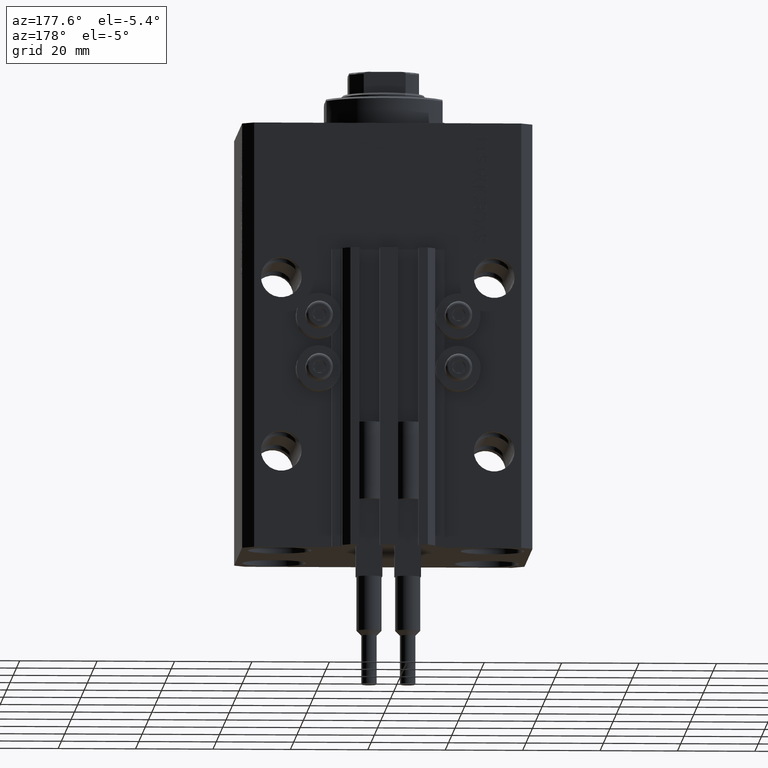
[diagram: clean part render]
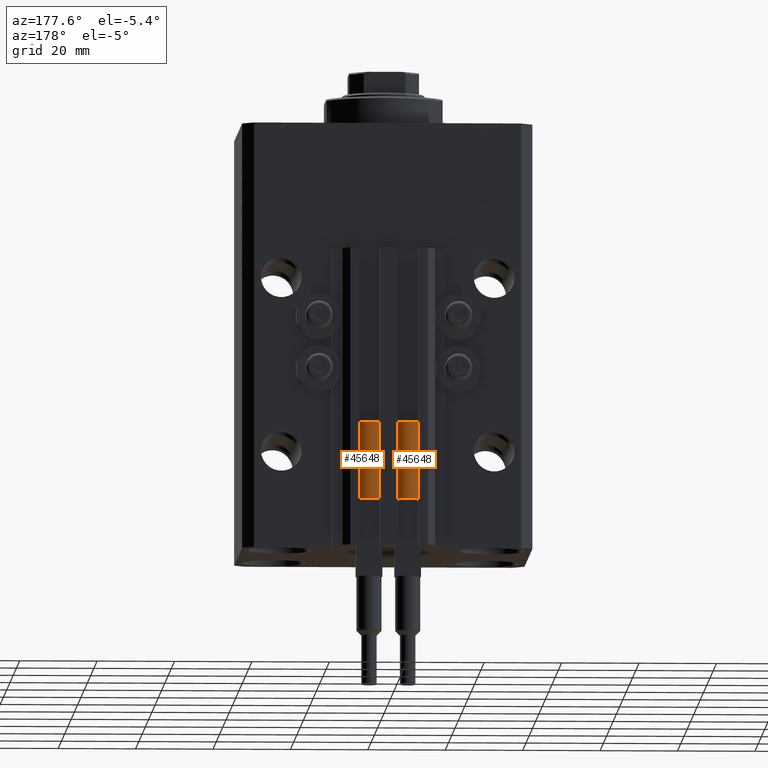
[diagram: same view with one multi-face feature highlighted, each face labeled with its STEP entity id]
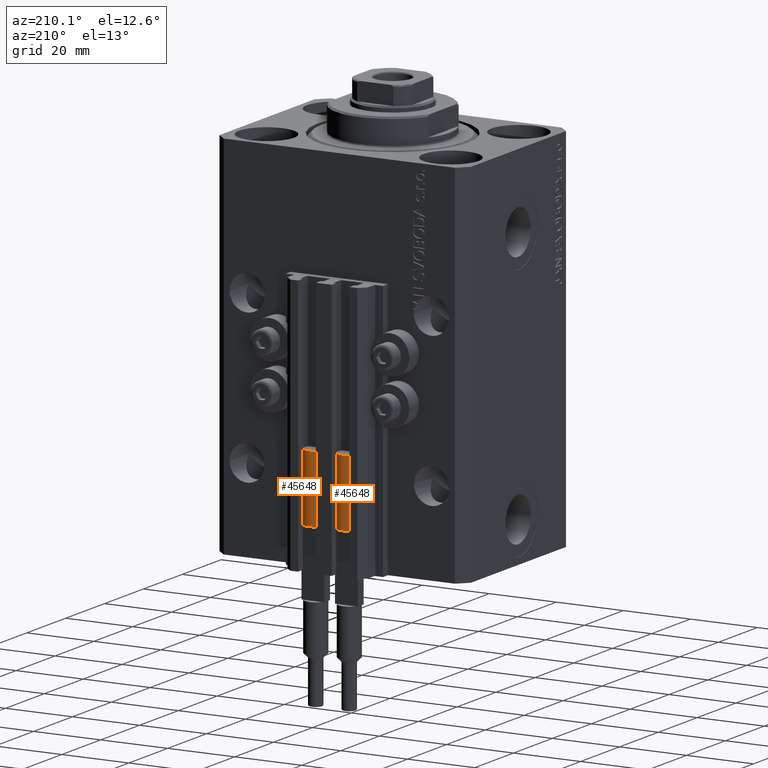
[diagram: same view with one multi-face feature highlighted, each face labeled with its STEP entity id]
A machine part, auxiliary view. The highlighted faces form ONE feature: a constant-radius fillet chain: 2 tangent blend faces with common blend radius 3.4 mm. The faces share edges in the B-rep.
A second angle (auxiliary view) of the same feature is appended — it is thin or edge-on in the first view.
Their STEP definitions:
[1] entity #45648 (Cylinder):
#1019 = DIRECTION ( 'NONE',  ( 1.000000000000000000, 0.000000000000000000, 0.000000000000000000 ) ) ;
#1122 = CARTESIAN_POINT ( 'NONE',  ( 0.000000000000000000, 0.000000000000000000, 20.00000000000000000 ) ) ;
#1920 = CARTESIAN_POINT ( 'NONE',  ( -3.400000000000000355, 0.000000000000000000, 20.00000000000000000 ) ) ;
#3035 = EDGE_LOOP ( 'NONE', ( #30367, #11745, #15909, #42929, #47976, #8501 ) ) ;
#3403 = CARTESIAN_POINT ( 'NONE',  ( 0.000000000000000000, 0.000000000000000000, 20.00000000000000000 ) ) ;
#3668 = CARTESIAN_POINT ( 'NONE',  ( 3.400000000000000355, 4.163799117101001052E-16, 0.000000000000000000 ) ) ;
#4440 = EDGE_CURVE ( 'NONE', #30192, #44255, #16531, .T. ) ;
#5877 = EDGE_CURVE ( 'NONE', #8791, #23794, #20468, .T. ) ;
#6184 = DIRECTION ( 'NONE',  ( 0.000000000000000000, 0.000000000000000000, 1.000000000000000000 ) ) ;
#6739 = VECTOR ( 'NONE', #9485, 1000.000000000000000 ) ;
#8167 = CARTESIAN_POINT ( 'NONE',  ( 3.051229260478471428, 1.500000000000000000, 20.00000000000000000 ) ) ;
#8501 = ORIENTED_EDGE ( 'NONE', *, *, #4440, .F. ) ;
#8791 = VERTEX_POINT ( 'NONE', #3668 ) ;
#9336 = DIRECTION ( 'NONE',  ( -0.000000000000000000, -0.000000000000000000, -1.000000000000000000 ) ) ;
#9485 = DIRECTION ( 'NONE',  ( -0.000000000000000000, -0.000000000000000000, -1.000000000000000000 ) ) ;
#11087 = AXIS2_PLACEMENT_3D ( 'NONE', #1122, #26475, #41814 ) ;
#11745 = ORIENTED_EDGE ( 'NONE', *, *, #39323, .T. ) ;
#12723 = CARTESIAN_POINT ( 'NONE',  ( 3.400000000000000355, 0.000000000000000000, 20.00000000000000000 ) ) ;
#13624 = DIRECTION ( 'NONE',  ( 1.000000000000000000, 0.000000000000000000, 0.000000000000000000 ) ) ;
#13875 = CYLINDRICAL_SURFACE ( 'NONE', #26555, 3.400000000000000355 ) ;
#15909 = ORIENTED_EDGE ( 'NONE', *, *, #5877, .T. ) ;
#16531 = CIRCLE ( 'NONE', #11087, 3.400000000000000355 ) ;
#20468 = CIRCLE ( 'NONE', #31380, 3.400000000000000355 ) ;
#23794 = VERTEX_POINT ( 'NONE', #37507 ) ;
#26475 = DIRECTION ( 'NONE',  ( 0.000000000000000000, 0.000000000000000000, 1.000000000000000000 ) ) ;
#26555 = AXIS2_PLACEMENT_3D ( 'NONE', #3403, #28747, #36782 ) ;
#26955 = EDGE_CURVE ( 'NONE', #44255, #27212, #38876, .T. ) ;
#27212 = VERTEX_POINT ( 'NONE', #42333 ) ;
#27338 = CARTESIAN_POINT ( 'NONE',  ( 0.000000000000000000, 0.000000000000000000, 0.000000000000000000 ) ) ;
#28240 = LINE ( 'NONE', #1920, #6739 ) ;
#28747 = DIRECTION ( 'NONE',  ( -0.000000000000000000, -0.000000000000000000, -1.000000000000000000 ) ) ;
#29321 = DIRECTION ( 'NONE',  ( 1.000000000000000000, 0.000000000000000000, 0.000000000000000000 ) ) ;
#29569 = VERTEX_POINT ( 'NONE', #12723 ) ;
#30192 = VERTEX_POINT ( 'NONE', #8167 ) ;
#30367 = ORIENTED_EDGE ( 'NONE', *, *, #35306, .F. ) ;
#31380 = AXIS2_PLACEMENT_3D ( 'NONE', #27338, #34400, #1019 ) ;
#31747 = LINE ( 'NONE', #39053, #32548 ) ;
#31812 = EDGE_CURVE ( 'NONE', #27212, #23794, #28240, .T. ) ;
#32156 = CARTESIAN_POINT ( 'NONE',  ( 0.000000000000000000, 0.000000000000000000, 20.00000000000000000 ) ) ;
#32548 = VECTOR ( 'NONE', #9336, 1000.000000000000000 ) ;
#33321 = CIRCLE ( 'NONE', #42657, 3.400000000000000355 ) ;
#34400 = DIRECTION ( 'NONE',  ( 0.000000000000000000, 0.000000000000000000, 1.000000000000000000 ) ) ;
#34969 = CARTESIAN_POINT ( 'NONE',  ( -3.051229260478471428, 1.500000000000000000, 20.00000000000000000 ) ) ;
#35306 = EDGE_CURVE ( 'NONE', #29569, #30192, #33321, .T. ) ;
#36782 = DIRECTION ( 'NONE',  ( -1.000000000000000000, 0.000000000000000000, 0.000000000000000000 ) ) ;
#37507 = CARTESIAN_POINT ( 'NONE',  ( -3.400000000000000355, 0.000000000000000000, 0.000000000000000000 ) ) ;
#38876 = CIRCLE ( 'NONE', #40443, 3.400000000000000355 ) ;
#39053 = CARTESIAN_POINT ( 'NONE',  ( 3.400000000000000355, 4.163799117101001052E-16, 20.00000000000000000 ) ) ;
#39323 = EDGE_CURVE ( 'NONE', #29569, #8791, #31747, .T. ) ;
#40443 = AXIS2_PLACEMENT_3D ( 'NONE', #32156, #46985, #13624 ) ;
#41814 = DIRECTION ( 'NONE',  ( 1.000000000000000000, 0.000000000000000000, 0.000000000000000000 ) ) ;
#42333 = CARTESIAN_POINT ( 'NONE',  ( -3.399999999999999467, -4.915049848600952119E-16, 20.00000000000000000 ) ) ;
#42657 = AXIS2_PLACEMENT_3D ( 'NONE', #43207, #6184, #29321 ) ;
#42929 = ORIENTED_EDGE ( 'NONE', *, *, #31812, .F. ) ;
#43207 = CARTESIAN_POINT ( 'NONE',  ( 0.000000000000000000, 0.000000000000000000, 20.00000000000000000 ) ) ;
#43832 = FACE_OUTER_BOUND ( 'NONE', #3035, .T. ) ;
#44255 = VERTEX_POINT ( 'NONE', #34969 ) ;
#45648 = ADVANCED_FACE ( 'NONE', ( #43832 ), #13875, .T. ) ;
#46985 = DIRECTION ( 'NONE',  ( 0.000000000000000000, 0.000000000000000000, 1.000000000000000000 ) ) ;
#47976 = ORIENTED_EDGE ( 'NONE', *, *, #26955, .F. ) ;
[2] entity #45648 (Cylinder):
#1019 = DIRECTION ( 'NONE',  ( 1.000000000000000000, 0.000000000000000000, 0.000000000000000000 ) ) ;
#1122 = CARTESIAN_POINT ( 'NONE',  ( 0.000000000000000000, 0.000000000000000000, 20.00000000000000000 ) ) ;
#1920 = CARTESIAN_POINT ( 'NONE',  ( -3.400000000000000355, 0.000000000000000000, 20.00000000000000000 ) ) ;
#3035 = EDGE_LOOP ( 'NONE', ( #30367, #11745, #15909, #42929, #47976, #8501 ) ) ;
#3403 = CARTESIAN_POINT ( 'NONE',  ( 0.000000000000000000, 0.000000000000000000, 20.00000000000000000 ) ) ;
#3668 = CARTESIAN_POINT ( 'NONE',  ( 3.400000000000000355, 4.163799117101001052E-16, 0.000000000000000000 ) ) ;
#4440 = EDGE_CURVE ( 'NONE', #30192, #44255, #16531, .T. ) ;
#5877 = EDGE_CURVE ( 'NONE', #8791, #23794, #20468, .T. ) ;
#6184 = DIRECTION ( 'NONE',  ( 0.000000000000000000, 0.000000000000000000, 1.000000000000000000 ) ) ;
#6739 = VECTOR ( 'NONE', #9485, 1000.000000000000000 ) ;
#8167 = CARTESIAN_POINT ( 'NONE',  ( 3.051229260478471428, 1.500000000000000000, 20.00000000000000000 ) ) ;
#8501 = ORIENTED_EDGE ( 'NONE', *, *, #4440, .F. ) ;
#8791 = VERTEX_POINT ( 'NONE', #3668 ) ;
#9336 = DIRECTION ( 'NONE',  ( -0.000000000000000000, -0.000000000000000000, -1.000000000000000000 ) ) ;
#9485 = DIRECTION ( 'NONE',  ( -0.000000000000000000, -0.000000000000000000, -1.000000000000000000 ) ) ;
#11087 = AXIS2_PLACEMENT_3D ( 'NONE', #1122, #26475, #41814 ) ;
#11745 = ORIENTED_EDGE ( 'NONE', *, *, #39323, .T. ) ;
#12723 = CARTESIAN_POINT ( 'NONE',  ( 3.400000000000000355, 0.000000000000000000, 20.00000000000000000 ) ) ;
#13624 = DIRECTION ( 'NONE',  ( 1.000000000000000000, 0.000000000000000000, 0.000000000000000000 ) ) ;
#13875 = CYLINDRICAL_SURFACE ( 'NONE', #26555, 3.400000000000000355 ) ;
#15909 = ORIENTED_EDGE ( 'NONE', *, *, #5877, .T. ) ;
#16531 = CIRCLE ( 'NONE', #11087, 3.400000000000000355 ) ;
#20468 = CIRCLE ( 'NONE', #31380, 3.400000000000000355 ) ;
#23794 = VERTEX_POINT ( 'NONE', #37507 ) ;
#26475 = DIRECTION ( 'NONE',  ( 0.000000000000000000, 0.000000000000000000, 1.000000000000000000 ) ) ;
#26555 = AXIS2_PLACEMENT_3D ( 'NONE', #3403, #28747, #36782 ) ;
#26955 = EDGE_CURVE ( 'NONE', #44255, #27212, #38876, .T. ) ;
#27212 = VERTEX_POINT ( 'NONE', #42333 ) ;
#27338 = CARTESIAN_POINT ( 'NONE',  ( 0.000000000000000000, 0.000000000000000000, 0.000000000000000000 ) ) ;
#28240 = LINE ( 'NONE', #1920, #6739 ) ;
#28747 = DIRECTION ( 'NONE',  ( -0.000000000000000000, -0.000000000000000000, -1.000000000000000000 ) ) ;
#29321 = DIRECTION ( 'NONE',  ( 1.000000000000000000, 0.000000000000000000, 0.000000000000000000 ) ) ;
#29569 = VERTEX_POINT ( 'NONE', #12723 ) ;
#30192 = VERTEX_POINT ( 'NONE', #8167 ) ;
#30367 = ORIENTED_EDGE ( 'NONE', *, *, #35306, .F. ) ;
#31380 = AXIS2_PLACEMENT_3D ( 'NONE', #27338, #34400, #1019 ) ;
#31747 = LINE ( 'NONE', #39053, #32548 ) ;
#31812 = EDGE_CURVE ( 'NONE', #27212, #23794, #28240, .T. ) ;
#32156 = CARTESIAN_POINT ( 'NONE',  ( 0.000000000000000000, 0.000000000000000000, 20.00000000000000000 ) ) ;
#32548 = VECTOR ( 'NONE', #9336, 1000.000000000000000 ) ;
#33321 = CIRCLE ( 'NONE', #42657, 3.400000000000000355 ) ;
#34400 = DIRECTION ( 'NONE',  ( 0.000000000000000000, 0.000000000000000000, 1.000000000000000000 ) ) ;
#34969 = CARTESIAN_POINT ( 'NONE',  ( -3.051229260478471428, 1.500000000000000000, 20.00000000000000000 ) ) ;
#35306 = EDGE_CURVE ( 'NONE', #29569, #30192, #33321, .T. ) ;
#36782 = DIRECTION ( 'NONE',  ( -1.000000000000000000, 0.000000000000000000, 0.000000000000000000 ) ) ;
#37507 = CARTESIAN_POINT ( 'NONE',  ( -3.400000000000000355, 0.000000000000000000, 0.000000000000000000 ) ) ;
#38876 = CIRCLE ( 'NONE', #40443, 3.400000000000000355 ) ;
#39053 = CARTESIAN_POINT ( 'NONE',  ( 3.400000000000000355, 4.163799117101001052E-16, 20.00000000000000000 ) ) ;
#39323 = EDGE_CURVE ( 'NONE', #29569, #8791, #31747, .T. ) ;
#40443 = AXIS2_PLACEMENT_3D ( 'NONE', #32156, #46985, #13624 ) ;
#41814 = DIRECTION ( 'NONE',  ( 1.000000000000000000, 0.000000000000000000, 0.000000000000000000 ) ) ;
#42333 = CARTESIAN_POINT ( 'NONE',  ( -3.399999999999999467, -4.915049848600952119E-16, 20.00000000000000000 ) ) ;
#42657 = AXIS2_PLACEMENT_3D ( 'NONE', #43207, #6184, #29321 ) ;
#42929 = ORIENTED_EDGE ( 'NONE', *, *, #31812, .F. ) ;
#43207 = CARTESIAN_POINT ( 'NONE',  ( 0.000000000000000000, 0.000000000000000000, 20.00000000000000000 ) ) ;
#43832 = FACE_OUTER_BOUND ( 'NONE', #3035, .T. ) ;
#44255 = VERTEX_POINT ( 'NONE', #34969 ) ;
#45648 = ADVANCED_FACE ( 'NONE', ( #43832 ), #13875, .T. ) ;
#46985 = DIRECTION ( 'NONE',  ( 0.000000000000000000, 0.000000000000000000, 1.000000000000000000 ) ) ;
#47976 = ORIENTED_EDGE ( 'NONE', *, *, #26955, .F. ) ;